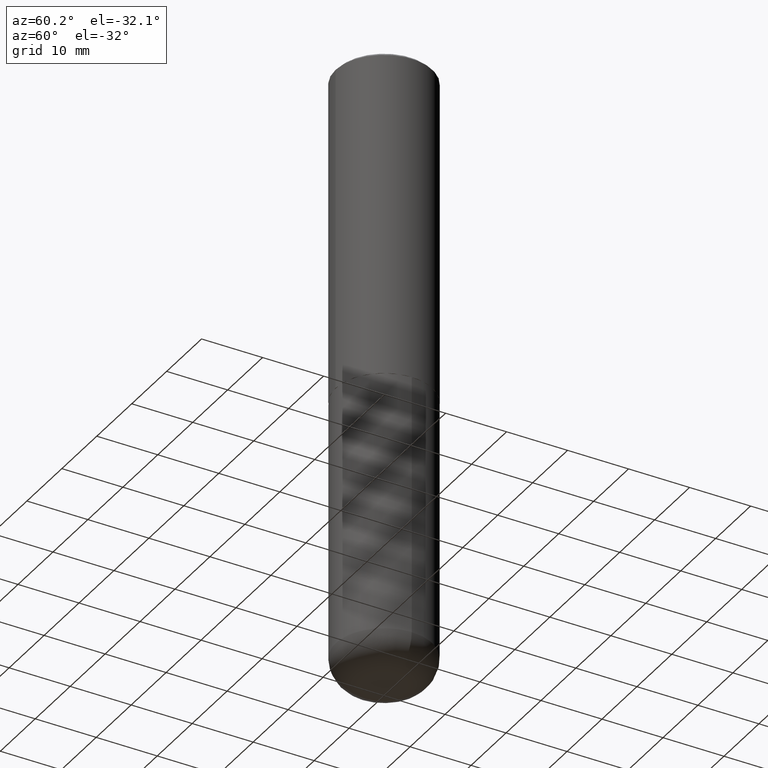
[diagram: clean part render]
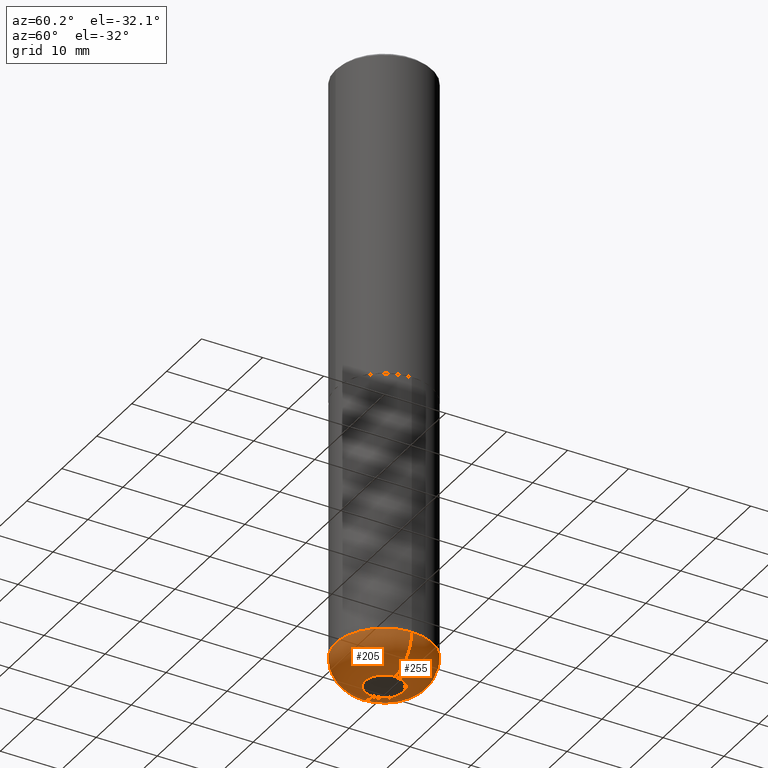
[diagram: same view with one multi-face feature highlighted, each face labeled with its STEP entity id]
A machine part, auxiliary view. The highlighted faces form ONE feature: a constant-radius fillet chain: 2 tangent blend faces with common blend radius 4.826 mm. The faces share edges in the B-rep.
Their STEP definitions:
[1] entity #205 (Torus):
#2 = EDGE_CURVE ( 'NONE', #383, #173, #401, .T. ) ;
#11 = DIRECTION ( 'NONE',  ( 1.000000000000000000, -6.982962677686263555E-15, 0.000000000000000000 ) ) ;
#29 = VERTEX_POINT ( 'NONE', #70 ) ;
#58 = DIRECTION ( 'NONE',  ( -2.445468806185136597E-29, 3.491481338843145583E-15, 1.000000000000000000 ) ) ;
#70 = CARTESIAN_POINT ( 'NONE',  ( 0.1225000000000000394, -1.482133828338914748E-14, -3.999999999999999556 ) ) ;
#73 = DIRECTION ( 'NONE',  ( -2.445468806185136597E-29, 3.491481338843145583E-15, 1.000000000000000000 ) ) ;
#86 = ORIENTED_EDGE ( 'NONE', *, *, #2, .F. ) ;
#91 = CARTESIAN_POINT ( 'NONE',  ( -0.1225000000000000394, -1.208880417790426594E-14, -3.999999999999999556 ) ) ;
#93 = DIRECTION ( 'NONE',  ( 7.105427357601001859E-15, 1.000000000000000000, -3.491481338843145583E-15 ) ) ;
#96 = VERTEX_POINT ( 'NONE', #91 ) ;
#98 = CARTESIAN_POINT ( 'NONE',  ( -0.3124999999999998890, -1.108209785174207265E-14, -3.810000000000000053 ) ) ;
#100 = CIRCLE ( 'NONE', #297, 0.1225000000000000394 ) ;
#107 = EDGE_CURVE ( 'NONE', #96, #383, #233, .T. ) ;
#116 = ORIENTED_EDGE ( 'NONE', *, *, #107, .F. ) ;
#135 = DIRECTION ( 'NONE',  ( -2.445468806185136597E-29, 3.491481338843145583E-15, 1.000000000000000000 ) ) ;
#156 = DIRECTION ( 'NONE',  ( -1.000000000000000000, 7.105427357600997914E-15, 0.000000000000000000 ) ) ;
#157 = DIRECTION ( 'NONE',  ( -6.982962677686266711E-15, -1.000000000000000000, 3.491481338843145583E-15 ) ) ;
#173 = VERTEX_POINT ( 'NONE', #252 ) ;
#188 = ORIENTED_EDGE ( 'NONE', *, *, #361, .T. ) ;
#189 = DIRECTION ( 'NONE',  ( 1.000000000000000000, -6.982962677686261189E-15, 0.000000000000000000 ) ) ;
#192 = CARTESIAN_POINT ( 'NONE',  ( 9.317236151565370389E-29, -1.330254390099238573E-14, -3.810000000000000053 ) ) ;
#193 = CIRCLE ( 'NONE', #412, 0.1899999999999997247 ) ;
#197 = AXIS2_PLACEMENT_3D ( 'NONE', #248, #93, #156 ) ;
#199 = EDGE_CURVE ( 'NONE', #96, #29, #100, .T. ) ;
#205 = ADVANCED_FACE ( 'NONE', ( #300 ), #374, .T. ) ;
#233 = CIRCLE ( 'NONE', #197, 0.1899999999999997247 ) ;
#248 = CARTESIAN_POINT ( 'NONE',  ( -0.1225000000000000255, -1.243212904968626105E-14, -3.810000000000000053 ) ) ;
#252 = CARTESIAN_POINT ( 'NONE',  ( 0.3124999999999998890, -1.548471973776934408E-14, -3.810000000000000053 ) ) ;
#265 = CARTESIAN_POINT ( 'NONE',  ( 9.781875224740545266E-29, -1.396592535537258075E-14, -3.999999999999999556 ) ) ;
#284 = AXIS2_PLACEMENT_3D ( 'NONE', #192, #58, #349 ) ;
#296 = DIRECTION ( 'NONE',  ( 1.000000000000000000, -6.982962677686269077E-15, 4.883557194083113462E-29 ) ) ;
#297 = AXIS2_PLACEMENT_3D ( 'NONE', #265, #135, #11 ) ;
#300 = FACE_OUTER_BOUND ( 'NONE', #326, .T. ) ;
#326 = EDGE_LOOP ( 'NONE', ( #116, #343, #188, #86 ) ) ;
#329 = CARTESIAN_POINT ( 'NONE',  ( 9.317236151565370389E-29, -1.330254390099238573E-14, -3.810000000000000053 ) ) ;
#339 = AXIS2_PLACEMENT_3D ( 'NONE', #329, #73, #296 ) ;
#343 = ORIENTED_EDGE ( 'NONE', *, *, #199, .T. ) ;
#349 = DIRECTION ( 'NONE',  ( 1.000000000000000000, -6.982962677686269077E-15, 0.000000000000000000 ) ) ;
#350 = CARTESIAN_POINT ( 'NONE',  ( 0.1225000000000000255, -1.415795682900895246E-14, -3.810000000000000053 ) ) ;
#361 = EDGE_CURVE ( 'NONE', #29, #173, #193, .T. ) ;
#374 = TOROIDAL_SURFACE ( 'NONE', #339, 0.1225000000000000255, 0.1899999999999996692 ) ;
#383 = VERTEX_POINT ( 'NONE', #98 ) ;
#401 = CIRCLE ( 'NONE', #284, 0.3125000000000000000 ) ;
#412 = AXIS2_PLACEMENT_3D ( 'NONE', #350, #157, #189 ) ;
[2] entity #255 (Torus):
#29 = VERTEX_POINT ( 'NONE', #70 ) ;
#30 = DIRECTION ( 'NONE',  ( 1.000000000000000000, -6.982962677686269077E-15, 0.000000000000000000 ) ) ;
#45 = FACE_OUTER_BOUND ( 'NONE', #223, .T. ) ;
#67 = EDGE_CURVE ( 'NONE', #29, #96, #266, .T. ) ;
#70 = CARTESIAN_POINT ( 'NONE',  ( 0.1225000000000000394, -1.482133828338914748E-14, -3.999999999999999556 ) ) ;
#88 = AXIS2_PLACEMENT_3D ( 'NONE', #217, #319, #187 ) ;
#91 = CARTESIAN_POINT ( 'NONE',  ( -0.1225000000000000394, -1.208880417790426594E-14, -3.999999999999999556 ) ) ;
#93 = DIRECTION ( 'NONE',  ( 7.105427357601001859E-15, 1.000000000000000000, -3.491481338843145583E-15 ) ) ;
#96 = VERTEX_POINT ( 'NONE', #91 ) ;
#98 = CARTESIAN_POINT ( 'NONE',  ( -0.3124999999999998890, -1.108209785174207265E-14, -3.810000000000000053 ) ) ;
#107 = EDGE_CURVE ( 'NONE', #96, #383, #233, .T. ) ;
#121 = DIRECTION ( 'NONE',  ( -2.445468806185136597E-29, 3.491481338843145583E-15, 1.000000000000000000 ) ) ;
#132 = TOROIDAL_SURFACE ( 'NONE', #180, 0.1225000000000000255, 0.1899999999999996692 ) ;
#138 = EDGE_CURVE ( 'NONE', #173, #383, #141, .T. ) ;
#141 = CIRCLE ( 'NONE', #379, 0.3125000000000000000 ) ;
#143 = CARTESIAN_POINT ( 'NONE',  ( 9.317236151565370389E-29, -1.330254390099238573E-14, -3.810000000000000053 ) ) ;
#156 = DIRECTION ( 'NONE',  ( -1.000000000000000000, 7.105427357600997914E-15, 0.000000000000000000 ) ) ;
#157 = DIRECTION ( 'NONE',  ( -6.982962677686266711E-15, -1.000000000000000000, 3.491481338843145583E-15 ) ) ;
#173 = VERTEX_POINT ( 'NONE', #252 ) ;
#180 = AXIS2_PLACEMENT_3D ( 'NONE', #143, #338, #305 ) ;
#182 = ORIENTED_EDGE ( 'NONE', *, *, #361, .F. ) ;
#187 = DIRECTION ( 'NONE',  ( 1.000000000000000000, -6.982962677686263555E-15, 0.000000000000000000 ) ) ;
#189 = DIRECTION ( 'NONE',  ( 1.000000000000000000, -6.982962677686261189E-15, 0.000000000000000000 ) ) ;
#193 = CIRCLE ( 'NONE', #412, 0.1899999999999997247 ) ;
#197 = AXIS2_PLACEMENT_3D ( 'NONE', #248, #93, #156 ) ;
#217 = CARTESIAN_POINT ( 'NONE',  ( 9.781875224740545266E-29, -1.396592535537258075E-14, -3.999999999999999556 ) ) ;
#218 = CARTESIAN_POINT ( 'NONE',  ( 9.317236151565370389E-29, -1.330254390099238573E-14, -3.810000000000000053 ) ) ;
#223 = EDGE_LOOP ( 'NONE', ( #320, #399, #310, #182 ) ) ;
#233 = CIRCLE ( 'NONE', #197, 0.1899999999999997247 ) ;
#248 = CARTESIAN_POINT ( 'NONE',  ( -0.1225000000000000255, -1.243212904968626105E-14, -3.810000000000000053 ) ) ;
#252 = CARTESIAN_POINT ( 'NONE',  ( 0.3124999999999998890, -1.548471973776934408E-14, -3.810000000000000053 ) ) ;
#255 = ADVANCED_FACE ( 'NONE', ( #45 ), #132, .T. ) ;
#266 = CIRCLE ( 'NONE', #88, 0.1225000000000000394 ) ;
#305 = DIRECTION ( 'NONE',  ( 1.000000000000000000, -6.982962677686269077E-15, 4.883557194083113462E-29 ) ) ;
#310 = ORIENTED_EDGE ( 'NONE', *, *, #138, .F. ) ;
#319 = DIRECTION ( 'NONE',  ( -2.445468806185136597E-29, 3.491481338843145583E-15, 1.000000000000000000 ) ) ;
#320 = ORIENTED_EDGE ( 'NONE', *, *, #67, .T. ) ;
#338 = DIRECTION ( 'NONE',  ( -2.445468806185136597E-29, 3.491481338843145583E-15, 1.000000000000000000 ) ) ;
#350 = CARTESIAN_POINT ( 'NONE',  ( 0.1225000000000000255, -1.415795682900895246E-14, -3.810000000000000053 ) ) ;
#361 = EDGE_CURVE ( 'NONE', #29, #173, #193, .T. ) ;
#379 = AXIS2_PLACEMENT_3D ( 'NONE', #218, #121, #30 ) ;
#383 = VERTEX_POINT ( 'NONE', #98 ) ;
#399 = ORIENTED_EDGE ( 'NONE', *, *, #107, .T. ) ;
#412 = AXIS2_PLACEMENT_3D ( 'NONE', #350, #157, #189 ) ;